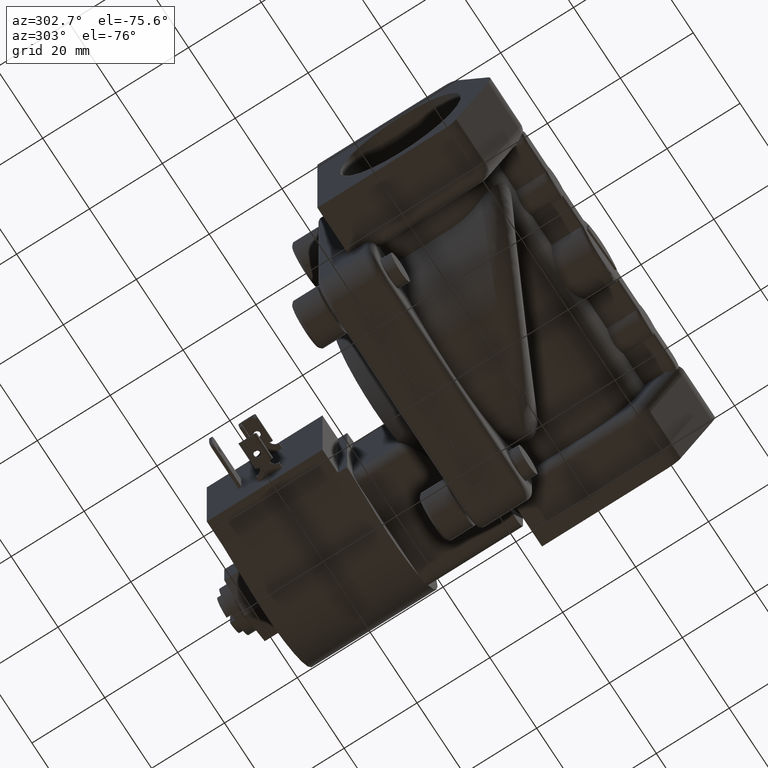
[diagram: clean part render]
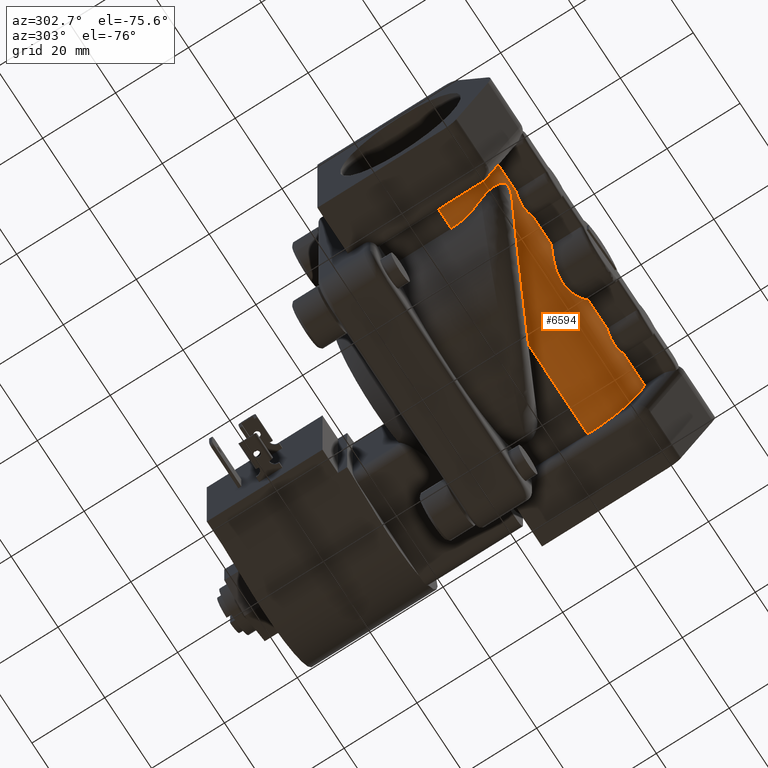
[diagram: same view with one face highlighted and labeled with its STEP entity id]
A machine part, auxiliary view. The second image highlights one B-rep face of the part: STEP entity #6594.
In plain terms, the highlighted cylindrical surface (partial cylindrical patch) has radius 16 mm, axis along (-1, 0, 0).
Its self-contained STEP definition (entity closure, byte-faithful):
#104 = CARTESIAN_POINT ( 'NONE',  ( -0.8403453437241460433, -38.35544171172597316, -8.500000000000003553 ) ) ;
#205 = VERTEX_POINT ( 'NONE', #2308 ) ;
#381 = ORIENTED_EDGE ( 'NONE', *, *, #9048, .T. ) ;
#397 = ORIENTED_EDGE ( 'NONE', *, *, #1745, .T. ) ;
#423 = CARTESIAN_POINT ( 'NONE',  ( 19.16358659245111795, -39.99868415357067875, -4.999999999999968026 ) ) ;
#482 = DIRECTION ( 'NONE',  ( 1.000000000000000000, 0.000000000000000000, 0.000000000000000000 ) ) ;
#577 = CARTESIAN_POINT ( 'NONE',  ( 4.986813992636885295, -39.24014945316515224, -6.895062666037823362 ) ) ;
#604 = CARTESIAN_POINT ( 'NONE',  ( -15.92928578572859166, -40.41249499599599915, -3.500000000000000000 ) ) ;
#649 = LINE ( 'NONE', #5150, #3531 ) ;
#686 = VERTEX_POINT ( 'NONE', #2572 ) ;
#729 = CARTESIAN_POINT ( 'NONE',  ( -23.07071421427144031, -40.41249499599599915, -3.499999999999993783 ) ) ;
#732 = CARTESIAN_POINT ( 'NONE',  ( -5.955682096655776192, -31.00339502211966547, -16.00000000000001421 ) ) ;
#741 = CARTESIAN_POINT ( 'NONE',  ( -27.66872556748253231, -38.50721297193354076, -8.257946528912583517 ) ) ;
#809 = CARTESIAN_POINT ( 'NONE',  ( -27.95531961690822342, -37.86831160484165082, -9.236110193540717717 ) ) ;
#866 = CARTESIAN_POINT ( 'NONE',  ( 19.83658702140046515, -39.99868415357067164, -4.999999999999968914 ) ) ;
#889 = CARTESIAN_POINT ( 'NONE',  ( -26.48428576813991953, -39.59581516749895513, -6.093072609152076602 ) ) ;
#958 = CARTESIAN_POINT ( 'NONE',  ( -24.73002772541055805, -39.79496974372631257, -5.581633609649959915 ) ) ;
#1206 = ORIENTED_EDGE ( 'NONE', *, *, #3876, .T. ) ;
#1271 = CARTESIAN_POINT ( 'NONE',  ( 31.51793470804021524, -40.44363891607277850, -3.358554353973534301 ) ) ;
#1596 = CARTESIAN_POINT ( 'NONE',  ( 3.223061989991411913, -38.72877271020131218, -7.875778920012262319 ) ) ;
#1621 = CARTESIAN_POINT ( 'NONE',  ( -19.50000000000000000, -39.99868415357066453, -4.999999999999997335 ) ) ;
#1661 = CARTESIAN_POINT ( 'NONE',  ( -26.25952208247514719, -25.62537298559110610, -16.00000000000000000 ) ) ;
#1676 = CARTESIAN_POINT ( 'NONE',  ( -27.78512571953224963, -33.88027422298339530, -13.17377962914341971 ) ) ;
#1685 = CARTESIAN_POINT ( 'NONE',  ( -16.41376753407733702, -40.30657029765465182, -3.947511747779276714 ) ) ;
#1725 = CARTESIAN_POINT ( 'NONE',  ( 19.50000000000000000, -39.99868415357067875, -4.999999999999969802 ) ) ;
#1731 = CARTESIAN_POINT ( 'NONE',  ( -22.58215512666186697, -40.30572903378216409, -3.950847613816174331 ) ) ;
#1745 = EDGE_CURVE ( 'NONE', #6978, #12059, #5379, .T. ) ;
#1788 = EDGE_CURVE ( 'NONE', #10759, #12662, #2075, .T. ) ;
#1812 = CARTESIAN_POINT ( 'NONE',  ( -26.25952208247515074, -24.80000000000000426, -16.00000000000000000 ) ) ;
#1817 = CARTESIAN_POINT ( 'NONE',  ( 32.00000000000000000, -24.80000000000000071, 0.000000000000000000 ) ) ;
#1849 = DIRECTION ( 'NONE',  ( 0.000000000000000000, 0.000000000000000000, 1.000000000000000000 ) ) ;
#1872 = CARTESIAN_POINT ( 'NONE',  ( 32.00000000000000000, -40.41249499599599915, -3.500000000000000000 ) ) ;
#1882 = CARTESIAN_POINT ( 'NONE',  ( -26.44618420057009800, -28.03599927433140593, -15.69020290811575968 ) ) ;
#1898 = CARTESIAN_POINT ( 'NONE',  ( -28.19321137932277566, -36.14662785717491289, -11.28466466030806181 ) ) ;
#2075 = B_SPLINE_CURVE_WITH_KNOTS ( 'NONE', 3,
 ( #1812, #1661, #9591, #1882, #6099, #5004, #3914, #6313, #12938, #2827 ),
 .UNSPECIFIED., .F., .F.,
 ( 4, 2, 2, 2, 4 ),
 ( 3.469446951953614189E-18, 0.002436493207322351206, 0.004872986414644698942, 0.007309479621967046245, 0.009745972829289394415 ),
 .UNSPECIFIED. ) ;
#2104 = VERTEX_POINT ( 'NONE', #8966 ) ;
#2111 = CARTESIAN_POINT ( 'NONE',  ( -27.37259411510047613, -38.92680715169058914, -7.517249583606690599 ) ) ;
#2113 = VERTEX_POINT ( 'NONE', #11826 ) ;
#2277 = CARTESIAN_POINT ( 'NONE',  ( 23.07071421427141900, -40.41249499599599915, -3.500000000000000000 ) ) ;
#2308 = CARTESIAN_POINT ( 'NONE',  ( -23.07071421427144031, -40.41249499599599915, -3.499999999999993783 ) ) ;
#2370 = CARTESIAN_POINT ( 'NONE',  ( 30.76068691160205404, -40.41249499599598494, -3.499999999999968470 ) ) ;
#2392 = VERTEX_POINT ( 'NONE', #9471 ) ;
#2497 = CARTESIAN_POINT ( 'NONE',  ( 30.50000000000000000, -40.41249499599599915, -3.499999999999984013 ) ) ;
#2524 = CARTESIAN_POINT ( 'NONE',  ( 18.18440410033602816, -40.05208073957336978, -4.835161286495949895 ) ) ;
#2572 = CARTESIAN_POINT ( 'NONE',  ( 23.07071421427141900, -40.41249499599599915, -3.500000000000000000 ) ) ;
#2652 = ORIENTED_EDGE ( 'NONE', *, *, #10946, .T. ) ;
#2743 = CARTESIAN_POINT ( 'NONE',  ( 19.50000000000000000, -39.99868415357067875, -4.999999999999969802 ) ) ;
#2762 = CARTESIAN_POINT ( 'NONE',  ( 5.304114228417612154, -39.35357518259444021, -6.654024487869540927 ) ) ;
#2827 = CARTESIAN_POINT ( 'NONE',  ( -27.78512571953224963, -33.88027422298339530, -13.17377962914341971 ) ) ;
#2834 = CARTESIAN_POINT ( 'NONE',  ( -22.52856129352373671, -39.08267363052814858, -7.211465451865020526 ) ) ;
#2851 = CARTESIAN_POINT ( 'NONE',  ( -17.25191421120373647, -40.16337344174943524, -4.469178746794012724 ) ) ;
#2913 = CARTESIAN_POINT ( 'NONE',  ( -28.19407572747587309, -36.35814777800479902, -11.06794576790459494 ) ) ;
#2931 = LINE ( 'NONE', #10499, #5694 ) ;
#2937 = CIRCLE ( 'NONE', #7587, 16.00000000000000000 ) ;
#2966 = CARTESIAN_POINT ( 'NONE',  ( 20.17352133295516836, -40.01013463959206007, -4.965547500496102273 ) ) ;
#3236 = CARTESIAN_POINT ( 'NONE',  ( -6.947484645922634705, -40.03090621256037451, -4.913877476283303736 ) ) ;
#3351 = CARTESIAN_POINT ( 'NONE',  ( 22.58623246592265943, -40.30657029765467314, -3.947511747779249180 ) ) ;
#3392 = VERTEX_POINT ( 'NONE', #12325 ) ;
#3452 = CARTESIAN_POINT ( 'NONE',  ( -3.954951267374288371, -38.91617312687089481, -7.534688065268063006 ) ) ;
#3491 = EDGE_CURVE ( 'NONE', #13544, #686, #2931, .T. ) ;
#3499 = ORIENTED_EDGE ( 'NONE', *, *, #4777, .T. ) ;
#3531 = VECTOR ( 'NONE', #13012, 1000.000000000000000 ) ;
#3560 = CARTESIAN_POINT ( 'NONE',  ( -15.92928578572859166, -40.41249499599599915, -3.500000000000000000 ) ) ;
#3697 = EDGE_CURVE ( 'NONE', #5368, #10759, #14356, .T. ) ;
#3725 = CARTESIAN_POINT ( 'NONE',  ( -18.82647866704483519, -40.01013463959205296, -4.965547500496130695 ) ) ;
#3739 = CARTESIAN_POINT ( 'NONE',  ( 32.00000000000000000, -24.80000000000000071, -16.00000000000000000 ) ) ;
#3825 = CARTESIAN_POINT ( 'NONE',  ( -30.76066409400418777, -40.41249499599599204, -3.499999999999996447 ) ) ;
#3876 = EDGE_CURVE ( 'NONE', #12662, #5547, #10231, .T. ) ;
#3914 = CARTESIAN_POINT ( 'NONE',  ( -26.99961872608189495, -31.11595601334886751, -14.72204657475251821 ) ) ;
#3954 = LINE ( 'NONE', #3739, #13170 ) ;
#3981 = CARTESIAN_POINT ( 'NONE',  ( 20.82433831061204188, -40.05281733744711659, -4.832848125554335184 ) ) ;
#4018 = CYLINDRICAL_SURFACE ( 'NONE', #12425, 16.00000000000000000 ) ;
#4038 = CARTESIAN_POINT ( 'NONE',  ( -31.76541044103354494, -40.46195181536940311, -3.273553258412631006 ) ) ;
#4069 = CARTESIAN_POINT ( 'NONE',  ( -26.98902654343045526, -39.29316608067895800, -6.783284926702303430 ) ) ;
#4153 = CARTESIAN_POINT ( 'NONE',  ( -25.32466047125980424, -39.82977969022116582, -5.486927609069320866 ) ) ;
#4220 = CARTESIAN_POINT ( 'NONE',  ( -25.17095736602840717, -39.82901868817083368, -5.489011938075700314 ) ) ;
#4279 = ORIENTED_EDGE ( 'NONE', *, *, #5324, .T. ) ;
#4361 = CARTESIAN_POINT ( 'NONE',  ( -24.06707117492183912, -39.66945174676726538, -5.910454233410108671 ) ) ;
#4527 = CARTESIAN_POINT ( 'NONE',  ( -6.704637735783916419, -39.92106376958448521, -5.240046127269242682 ) ) ;
#4537 = CARTESIAN_POINT ( 'NONE',  ( 30.50000000000000000, -40.41249499599599915, -3.499999999999984013 ) ) ;
#4750 = EDGE_CURVE ( 'NONE', #686, #13998, #13910, .T. ) ;
#4777 = EDGE_CURVE ( 'NONE', #205, #2113, #649, .T. ) ;
#4847 = CARTESIAN_POINT ( 'NONE',  ( 16.41784487333816855, -40.30572903378217831, -3.950847613816172554 ) ) ;
#4895 = CARTESIAN_POINT ( 'NONE',  ( -17.86050123719518723, -40.08385867024126270, -4.735162153978585309 ) ) ;
#4983 = ORIENTED_EDGE ( 'NONE', *, *, #9042, .T. ) ;
#5004 = CARTESIAN_POINT ( 'NONE',  ( -26.83336234695810418, -30.37202394734940469, -15.02037997532216984 ) ) ;
#5035 = CARTESIAN_POINT ( 'NONE',  ( -18.17566168938795457, -40.05281733744710237, -4.832848125554362717 ) ) ;
#5092 = CARTESIAN_POINT ( 'NONE',  ( -22.83835061912431286, -40.35935140861396775, -3.737058283448859264 ) ) ;
#5150 = CARTESIAN_POINT ( 'NONE',  ( 32.00000000000000000, -40.41249499599599915, -3.500000000000000000 ) ) ;
#5184 = EDGE_CURVE ( 'NONE', #13998, #6205, #10429, .T. ) ;
#5236 = VECTOR ( 'NONE', #6305, 1000.000000000000000 ) ;
#5242 = CARTESIAN_POINT ( 'NONE',  ( -22.73266733564337017, -39.18217430664460466, -7.014399308751973372 ) ) ;
#5324 = EDGE_CURVE ( 'NONE', #12059, #5980, #10243, .T. ) ;
#5336 = ORIENTED_EDGE ( 'NONE', *, *, #9463, .F. ) ;
#5356 = CARTESIAN_POINT ( 'NONE',  ( -4.306404788017212049, -39.01946387363398827, -7.339434318919637157 ) ) ;
#5368 = VERTEX_POINT ( 'NONE', #14297 ) ;
#5379 = B_SPLINE_CURVE_WITH_KNOTS ( 'NONE', 3,
 ( #7421, #10532, #6168, #12724, #11553, #2762, #577, #13742, #8433, #1596, #12798, #10466, #9451, #6247, #13888, #11627 ),
 .UNSPECIFIED., .F., .F.,
 ( 4, 2, 2, 2, 2, 2, 2, 4 ),
 ( -0.009943655216159719493, -0.007457741412119791788, -0.006214784510099827936, -0.004971827608079862348, -0.003728870706059896761, -0.002485913804039932042, -0.001242956902019965587, 0.000000000000000000 ),
 .UNSPECIFIED. ) ;
#5426 = CARTESIAN_POINT ( 'NONE',  ( -6.182487219188662841, -39.69689734713824691, -5.846973778680383482 ) ) ;
#5457 = CARTESIAN_POINT ( 'NONE',  ( -27.75167297458653692, -38.35484041142672140, -8.505978340039114016 ) ) ;
#5547 = VERTEX_POINT ( 'NONE', #9126 ) ;
#5567 = CARTESIAN_POINT ( 'NONE',  ( -7.382858002884320037, -40.23436274814198299, -4.231683171800796117 ) ) ;
#5615 = CARTESIAN_POINT ( 'NONE',  ( 21.59723292573340458, -40.14195166396530823, -4.541920657568431885 ) ) ;
#5637 = DIRECTION ( 'NONE',  ( -1.000000000000000000, 0.000000000000000000, 0.000000000000000000 ) ) ;
#5671 = CARTESIAN_POINT ( 'NONE',  ( -27.78512571953224963, -33.88027422298339530, -13.17377962914341971 ) ) ;
#5694 = VECTOR ( 'NONE', #7299, 1000.000000000000000 ) ;
#5855 = CARTESIAN_POINT ( 'NONE',  ( 6.769230769230879297, -24.80000000000000071, -16.00000000000000000 ) ) ;
#5910 = CARTESIAN_POINT ( 'NONE',  ( -19.16341297859953130, -39.99868415357066453, -4.999999999999997335 ) ) ;
#5980 = VERTEX_POINT ( 'NONE', #7553 ) ;
#6018 = CARTESIAN_POINT ( 'NONE',  ( 17.25248146028650709, -40.16098502001522519, -4.478634039444554737 ) ) ;
#6099 = CARTESIAN_POINT ( 'NONE',  ( -26.55494494612230838, -28.82283694900414517, -15.50729016800232962 ) ) ;
#6124 = CARTESIAN_POINT ( 'NONE',  ( -17.40276707426659186, -40.14195166396530823, -4.541920657568458530 ) ) ;
#6155 = CARTESIAN_POINT ( 'NONE',  ( -31.02121436511131947, -40.41918543980892764, -3.470506279730243726 ) ) ;
#6168 = CARTESIAN_POINT ( 'NONE',  ( 6.973784476822448397, -40.03683706665248110, -4.925440397583637164 ) ) ;
#6172 = CARTESIAN_POINT ( 'NONE',  ( -22.03622956013634848, -40.20650554233426988, -4.321621999978201067 ) ) ;
#6205 = VERTEX_POINT ( 'NONE', #10730 ) ;
#6247 = CARTESIAN_POINT ( 'NONE',  ( 0.8429718443959276497, -38.37545639789379948, -8.468304380706630496 ) ) ;
#6252 = CARTESIAN_POINT ( 'NONE',  ( -19.50000000000000000, -39.99868415357066453, -4.999999999999997335 ) ) ;
#6305 = DIRECTION ( 'NONE',  ( -1.000000000000000000, 0.000000000000000000, 0.000000000000000000 ) ) ;
#6313 = CARTESIAN_POINT ( 'NONE',  ( -27.36834299231645318, -32.54196920388101688, -14.02468782390174162 ) ) ;
#6320 = CARTESIAN_POINT ( 'NONE',  ( -32.00000000000000000, -24.80000000000000071, 0.000000000000000000 ) ) ;
#6394 = B_SPLINE_CURVE_WITH_KNOTS ( 'NONE', 3,
 ( #604, #11498, #1685, #12821, #10556, #2851, #6124, #4895, #5035, #3725, #5910, #1621 ),
 .UNSPECIFIED., .F., .F.,
 ( 4, 2, 2, 2, 2, 4 ),
 ( -0.003979608854300072454, -0.002984706640725061713, -0.002487255533937550271, -0.001989804427150039263, -0.0009949022135750198483, 0.000000000000000000 ),
 .UNSPECIFIED. ) ;
#6403 = CARTESIAN_POINT ( 'NONE',  ( -25.76573574151237978, -39.79360694823031963, -5.585433078940457818 ) ) ;
#6510 = CARTESIAN_POINT ( 'NONE',  ( -5.302833731626583891, -39.35312068889870574, -6.654982275105045808 ) ) ;
#6578 = CARTESIAN_POINT ( 'NONE',  ( -7.576746384381801036, -40.32853821202007794, -3.874507105629729331 ) ) ;
#6594 = ADVANCED_FACE ( 'NONE', ( #13990 ), #4018, .T. ) ;
#6716 = CARTESIAN_POINT ( 'NONE',  ( 22.03900331533358070, -40.20863042687893341, -4.310558032239898196 ) ) ;
#6732 = CARTESIAN_POINT ( 'NONE',  ( 0.000000000000000000, -38.35544171172595895, -8.500000000000000000 ) ) ;
#6804 = CARTESIAN_POINT ( 'NONE',  ( 31.01632116469541955, -40.41902157664640072, -3.471237657279469424 ) ) ;
#6813 = ORIENTED_EDGE ( 'NONE', *, *, #4750, .T. ) ;
#6929 = DIRECTION ( 'NONE',  ( 1.000000000000000000, 0.000000000000000000, 0.000000000000000000 ) ) ;
#6954 = LINE ( 'NONE', #11307, #13402 ) ;
#6978 = VERTEX_POINT ( 'NONE', #13522 ) ;
#7079 = ORIENTED_EDGE ( 'NONE', *, *, #11421, .T. ) ;
#7099 = CARTESIAN_POINT ( 'NONE',  ( 17.86231171653743033, -40.08366919664799610, -4.735765992090056997 ) ) ;
#7209 = DIRECTION ( 'NONE',  ( -1.000000000000000000, 0.000000000000000000, 0.000000000000000000 ) ) ;
#7278 = CARTESIAN_POINT ( 'NONE',  ( -16.79323194910304551, -36.28670057518774428, -12.74903210822068189 ) ) ;
#7281 = EDGE_LOOP ( 'NONE', ( #13322, #381, #7434, #10405, #6813, #10427, #10148, #397, #4279, #2652, #7079, #4983, #3499, #5336, #14116, #7817, #13257, #1206, #10858 ) ) ;
#7299 = DIRECTION ( 'NONE',  ( -1.000000000000000000, 0.000000000000000000, 0.000000000000000000 ) ) ;
#7344 = CARTESIAN_POINT ( 'NONE',  ( -20.16668459521059731, -40.00985347282293247, -4.966397979235150473 ) ) ;
#7361 = CARTESIAN_POINT ( 'NONE',  ( -26.15169926540938405, -39.70880332136436408, -5.808442441625181196 ) ) ;
#7421 = CARTESIAN_POINT ( 'NONE',  ( 7.745966692414837595, -40.41249499599599915, -3.500000000000000000 ) ) ;
#7425 = DIRECTION ( 'NONE',  ( 0.000000000000000000, 0.000000000000000000, 1.000000000000000000 ) ) ;
#7434 = ORIENTED_EDGE ( 'NONE', *, *, #14119, .F. ) ;
#7438 = CARTESIAN_POINT ( 'NONE',  ( -23.59516788196841475, -39.52915484050858907, -6.251884690155287139 ) ) ;
#7456 = CARTESIAN_POINT ( 'NONE',  ( 32.00000000000000000, -24.80000000000000071, 0.000000000000000000 ) ) ;
#7500 = VERTEX_POINT ( 'NONE', #5855 ) ;
#7553 = CARTESIAN_POINT ( 'NONE',  ( -7.745966692414839372, -40.41249499599599915, -3.499999999999998668 ) ) ;
#7572 = CARTESIAN_POINT ( 'NONE',  ( -27.12746514499632511, -39.17694654246569286, -7.027028512705443930 ) ) ;
#7587 = AXIS2_PLACEMENT_3D ( 'NONE', #6320, #9383, #10689 ) ;
#7653 = CARTESIAN_POINT ( 'NONE',  ( -27.47924959453438731, -38.79285744056086571, -7.764103874914515480 ) ) ;
#7817 = ORIENTED_EDGE ( 'NONE', *, *, #3697, .T. ) ;
#8056 = CARTESIAN_POINT ( 'NONE',  ( 18.83331540478941690, -40.00985347282293958, -4.966397979235123827 ) ) ;
#8200 = CARTESIAN_POINT ( 'NONE',  ( -32.00000000000000000, -40.48438714135811978, -3.162277660168374638 ) ) ;
#8287 = B_SPLINE_CURVE_WITH_KNOTS ( 'NONE', 3,
 ( #6252, #8297, #7344, #8511, #12729, #9595, #6172, #1731, #5092, #729 ),
 .UNSPECIFIED., .F., .F.,
 ( 4, 2, 2, 2, 4 ),
 ( 1.084202172485504434E-19, 0.0009943890363154294330, 0.001988778072630858432, 0.002983167108946287865, 0.003977556145261716865 ),
 .UNSPECIFIED. ) ;
#8297 = CARTESIAN_POINT ( 'NONE',  ( -19.83641340754888205, -39.99868415357065743, -4.999999999999997335 ) ) ;
#8433 = CARTESIAN_POINT ( 'NONE',  ( 3.961623171457542725, -38.91796864898595487, -7.531371988927887173 ) ) ;
#8450 = CARTESIAN_POINT ( 'NONE',  ( -27.94210906726413768, -34.36072766597486350, -12.84262362049160799 ) ) ;
#8489 = CARTESIAN_POINT ( 'NONE',  ( -31.52266792926140226, -40.44394896061353251, -3.357116107391228788 ) ) ;
#8511 = CARTESIAN_POINT ( 'NONE',  ( -20.81559589966398960, -40.05208073957336978, -4.835161286495973876 ) ) ;
#8528 = CARTESIAN_POINT ( 'NONE',  ( -26.66845986792477774, -39.50164600160204742, -6.318735813637716525 ) ) ;
#8734 = CARTESIAN_POINT ( 'NONE',  ( -28.16538232441299172, -36.96899041343157677, -10.40559881197206415 ) ) ;
#8786 = CARTESIAN_POINT ( 'NONE',  ( 32.00000000000000000, -40.48438714135812688, -3.162277660168348437 ) ) ;
#8966 = CARTESIAN_POINT ( 'NONE',  ( 32.00000000000000000, -40.48438714135812688, -3.162277660168348437 ) ) ;
#8967 = CARTESIAN_POINT ( 'NONE',  ( 22.83824045836919581, -40.35932621388540298, -3.737170669898590702 ) ) ;
#8984 = CARTESIAN_POINT ( 'NONE',  ( -7.745966692414839372, -40.41249499599599915, -3.499999999999998668 ) ) ;
#9042 = EDGE_CURVE ( 'NONE', #3392, #205, #8287, .T. ) ;
#9048 = EDGE_CURVE ( 'NONE', #2392, #2104, #11984, .T. ) ;
#9126 = CARTESIAN_POINT ( 'NONE',  ( -22.52856129352373671, -39.08267363052814858, -7.211465451865020526 ) ) ;
#9289 = CARTESIAN_POINT ( 'NONE',  ( 16.16164938087572267, -40.35935140861396775, -3.737058283448861484 ) ) ;
#9383 = DIRECTION ( 'NONE',  ( 1.000000000000000000, 0.000000000000000000, 0.000000000000000000 ) ) ;
#9451 = CARTESIAN_POINT ( 'NONE',  ( 1.665211486864240475, -38.45120303038001452, -8.345648645776723384 ) ) ;
#9463 = EDGE_CURVE ( 'NONE', #12719, #2113, #14221, .T. ) ;
#9471 = CARTESIAN_POINT ( 'NONE',  ( 32.00000000000000000, -24.80000000000000071, -16.00000000000000000 ) ) ;
#9591 = CARTESIAN_POINT ( 'NONE',  ( -26.29847155866276864, -26.43726566408275147, -15.93654666941785436 ) ) ;
#9595 = CARTESIAN_POINT ( 'NONE',  ( -21.74751853971352844, -40.16098502001521808, -4.478634039444566284 ) ) ;
#9682 = CARTESIAN_POINT ( 'NONE',  ( -25.62072630030649023, -39.81218840007529280, -5.534875930352541218 ) ) ;
#9708 = EDGE_CURVE ( 'NONE', #6205, #6978, #13283, .T. ) ;
#9927 = CARTESIAN_POINT ( 'NONE',  ( -4.981496579229699684, -39.23825954968955898, -6.899065889750270131 ) ) ;
#10048 = CARTESIAN_POINT ( 'NONE',  ( 21.13949876280481277, -40.08385867024125560, -4.735162153978556887 ) ) ;
#10148 = ORIENTED_EDGE ( 'NONE', *, *, #9708, .T. ) ;
#10195 = VERTEX_POINT ( 'NONE', #3560 ) ;
#10231 = B_SPLINE_CURVE_WITH_KNOTS ( 'NONE', 3,
 ( #1676, #8450, #12880, #14199, #11789, #1898, #2913, #8734, #10698, #809, #14261, #5457, #741, #7653, #2111, #7572, #4069, #8528, #889, #7361, #14128, #6403, #9682, #4153, #4220, #13172, #958, #13032, #4361, #7438, #12007, #13099, #5242, #12961 ),
 .UNSPECIFIED., .F., .F.,
 ( 4, 2, 2, 2, 2, 2, 2, 2, 2, 2, 2, 2, 2, 2, 2, 2, 4 ),
 ( 0.000000000000000000, 0.001786910752550725573, 0.002680366128826090853, 0.003573821505101455916, 0.005360732257652176501, 0.006254187633927537661, 0.007147643010202898821, 0.008041098386478259114, 0.008934553762753620273, 0.009828009139028981433, 0.01027473682716666635, 0.01072146451530435127, 0.01116819220344203618, 0.01161491989157971937, 0.01250837526785509093, 0.01340183064413046077, 0.01429528602040583060 ),
 .UNSPECIFIED. ) ;
#10243 = B_SPLINE_CURVE_WITH_KNOTS ( 'NONE', 3,
 ( #6732, #104, #13429, #11008, #12044, #3452, #5356, #9927, #6510, #11086, #5426, #4527, #3236, #5567, #6578, #8984 ),
 .UNSPECIFIED., .F., .F.,
 ( 4, 2, 2, 2, 2, 2, 2, 4 ),
 ( 1.084202172485504434E-19, 0.002480419038383724351, 0.003720628557575588261, 0.004960838076767450436, 0.006201047595959313478, 0.007441257115151174786, 0.008681466634343036962, 0.009921676153534899137 ),
 .UNSPECIFIED. ) ;
#10317 = EDGE_CURVE ( 'NONE', #5547, #7500, #12646, .T. ) ;
#10367 = EDGE_CURVE ( 'NONE', #12719, #5368, #2937, .T. ) ;
#10405 = ORIENTED_EDGE ( 'NONE', *, *, #3491, .T. ) ;
#10427 = ORIENTED_EDGE ( 'NONE', *, *, #5184, .T. ) ;
#10429 = B_SPLINE_CURVE_WITH_KNOTS ( 'NONE', 3,
 ( #2743, #423, #8056, #2524, #7099, #6018, #11451, #4847, #9289, #13725 ),
 .UNSPECIFIED., .F., .F.,
 ( 4, 2, 2, 2, 4 ),
 ( -2.168404344971008868E-19, 0.0009943890363154155553, 0.001988778072630831111, 0.002983167108946247099, 0.003977556145261663088 ),
 .UNSPECIFIED. ) ;
#10466 = CARTESIAN_POINT ( 'NONE',  ( 2.064974680994366096, -38.50646757570989820, -8.255383668535975161 ) ) ;
#10499 = CARTESIAN_POINT ( 'NONE',  ( 32.00000000000000000, -40.41249499599599915, -3.500000000000000000 ) ) ;
#10532 = CARTESIAN_POINT ( 'NONE',  ( 7.406804680368309413, -40.24422351540826526, -4.250610756755654585 ) ) ;
#10556 = CARTESIAN_POINT ( 'NONE',  ( -16.96099668466642285, -40.20863042687893341, -4.310558032239927506 ) ) ;
#10689 = DIRECTION ( 'NONE',  ( 0.000000000000000000, 8.673617379884035472E-16, 1.000000000000000000 ) ) ;
#10698 = CARTESIAN_POINT ( 'NONE',  ( -28.10564493959143917, -37.34591300919198886, -9.947163696236753339 ) ) ;
#10730 = CARTESIAN_POINT ( 'NONE',  ( 15.92928578572860232, -40.41249499599599915, -3.499999999999998668 ) ) ;
#10759 = VERTEX_POINT ( 'NONE', #13798 ) ;
#10858 = ORIENTED_EDGE ( 'NONE', *, *, #10317, .T. ) ;
#10946 = EDGE_CURVE ( 'NONE', #5980, #10195, #6954, .T. ) ;
#11008 = CARTESIAN_POINT ( 'NONE',  ( -2.839763138507485074, -38.64424230959305362, -8.022216124814503857 ) ) ;
#11073 = EDGE_CURVE ( 'NONE', #7500, #2392, #3954, .T. ) ;
#11086 = CARTESIAN_POINT ( 'NONE',  ( -5.902266540818605023, -39.58208464727631792, -6.129607193643996865 ) ) ;
#11144 = CARTESIAN_POINT ( 'NONE',  ( 21.74808578879627419, -40.16337344174944946, -4.469178746793981638 ) ) ;
#11195 = CARTESIAN_POINT ( 'NONE',  ( -32.00000000000000000, -40.48438714135811978, -3.162277660168374638 ) ) ;
#11229 = CARTESIAN_POINT ( 'NONE',  ( 31.76537715455410193, -40.46194863196678426, -3.273569047576155189 ) ) ;
#11304 = CARTESIAN_POINT ( 'NONE',  ( 0.000000000000000000, -38.35544171172595895, -8.500000000000000000 ) ) ;
#11307 = CARTESIAN_POINT ( 'NONE',  ( 32.00000000000000000, -40.41249499599599915, -3.500000000000000000 ) ) ;
#11421 = EDGE_CURVE ( 'NONE', #10195, #3392, #6394, .T. ) ;
#11451 = CARTESIAN_POINT ( 'NONE',  ( 16.96377043986368349, -40.20650554233427698, -4.321621999978190409 ) ) ;
#11498 = CARTESIAN_POINT ( 'NONE',  ( -16.16175954163080775, -40.35932621388538166, -3.737170669898625786 ) ) ;
#11553 = CARTESIAN_POINT ( 'NONE',  ( 5.904956870714644701, -39.58314711055552948, -6.127083644628127601 ) ) ;
#11627 = CARTESIAN_POINT ( 'NONE',  ( 0.000000000000000000, -38.35544171172595895, -8.500000000000000000 ) ) ;
#11635 = CARTESIAN_POINT ( 'NONE',  ( 19.50000000000000000, -39.99868415357067875, -4.999999999999969802 ) ) ;
#11700 = CARTESIAN_POINT ( 'NONE',  ( 6.769230769230879297, -24.80000000000000071, -16.00000000000000000 ) ) ;
#11789 = CARTESIAN_POINT ( 'NONE',  ( -28.17028993569063999, -35.71655284490427817, -11.70121763788861280 ) ) ;
#11826 = CARTESIAN_POINT ( 'NONE',  ( -30.50000000000000000, -40.41249499599599915, -3.499999999999997780 ) ) ;
#11907 = B_SPLINE_CURVE_WITH_KNOTS ( 'NONE', 3,
 ( #4537, #2370, #6804, #1271, #11229, #8786 ),
 .UNSPECIFIED., .F., .F.,
 ( 4, 2, 4 ),
 ( 3.496446946337351263E-18, 0.0007708303217055109896, 0.001541660643411018510 ),
 .UNSPECIFIED. ) ;
#11984 = CIRCLE ( 'NONE', #12921, 16.00000000000000000 ) ;
#12007 = CARTESIAN_POINT ( 'NONE',  ( -23.37156959874201689, -39.44898609099745812, -6.438240809845603430 ) ) ;
#12044 = CARTESIAN_POINT ( 'NONE',  ( -3.222618034427910061, -38.72874621838973042, -7.875779121609395972 ) ) ;
#12059 = VERTEX_POINT ( 'NONE', #11304 ) ;
#12238 = CARTESIAN_POINT ( 'NONE',  ( 22.17943699233845933, -40.23248539563572734, -4.224634583278249700 ) ) ;
#12325 = CARTESIAN_POINT ( 'NONE',  ( -19.50000000000000000, -39.99868415357066453, -4.999999999999997335 ) ) ;
#12425 = AXIS2_PLACEMENT_3D ( 'NONE', #7456, #12899, #1849 ) ;
#12438 = VECTOR ( 'NONE', #6929, 1000.000000000000000 ) ;
#12646 =( BOUNDED_CURVE ( )  B_SPLINE_CURVE ( 3, ( #2834, #7278, #732, #11700 ),
 .UNSPECIFIED., .F., .F. ) 
 B_SPLINE_CURVE_WITH_KNOTS ( ( 4, 4 ),
 ( 0.4675679290044009728, 1.570796326794899889 ),
 .UNSPECIFIED. ) 
 CURVE ( )  GEOMETRIC_REPRESENTATION_ITEM ( )  RATIONAL_B_SPLINE_CURVE ( ( 1.000000000000000000, 0.9011197937289829873, 0.9011197937289829873, 1.000000000000000000 ) ) 
 REPRESENTATION_ITEM ( '' )  );
#12662 = VERTEX_POINT ( 'NONE', #5671 ) ;
#12719 = VERTEX_POINT ( 'NONE', #11195 ) ;
#12724 = CARTESIAN_POINT ( 'NONE',  ( 6.190249339659659178, -39.70011981004827817, -5.838811640451577745 ) ) ;
#12729 = CARTESIAN_POINT ( 'NONE',  ( -21.13768828346259454, -40.08366919664798900, -4.735765992090076537 ) ) ;
#12798 = CARTESIAN_POINT ( 'NONE',  ( 2.843902365612067218, -38.64524877479538389, -8.020455054592872557 ) ) ;
#12821 = CARTESIAN_POINT ( 'NONE',  ( -16.82056300766154422, -40.23248539563571313, -4.224634583278279010 ) ) ;
#12880 = CARTESIAN_POINT ( 'NONE',  ( -28.05015607247401377, -34.82555191261480587, -12.48354611939568493 ) ) ;
#12899 = DIRECTION ( 'NONE',  ( -1.000000000000000000, 0.000000000000000000, 0.000000000000000000 ) ) ;
#12921 = AXIS2_PLACEMENT_3D ( 'NONE', #1817, #7209, #7425 ) ;
#12938 = CARTESIAN_POINT ( 'NONE',  ( -27.57109853383242282, -33.22532602991162065, -13.62522044155789303 ) ) ;
#12961 = CARTESIAN_POINT ( 'NONE',  ( -22.52856129352373671, -39.08267363052814858, -7.211465451865020526 ) ) ;
#12982 = CARTESIAN_POINT ( 'NONE',  ( 32.00000000000000000, -24.80000000000000071, -16.00000000000000000 ) ) ;
#13012 = DIRECTION ( 'NONE',  ( -1.000000000000000000, 0.000000000000000000, 0.000000000000000000 ) ) ;
#13032 = CARTESIAN_POINT ( 'NONE',  ( -24.31393506850378472, -39.73021158498811900, -5.753589097081547976 ) ) ;
#13099 = CARTESIAN_POINT ( 'NONE',  ( -22.94067992544490764, -39.27570089668743947, -6.818931131008787005 ) ) ;
#13170 = VECTOR ( 'NONE', #482, 1000.000000000000000 ) ;
#13172 = CARTESIAN_POINT ( 'NONE',  ( -24.87354155971940273, -39.81138471142888591, -5.537055519967660544 ) ) ;
#13257 = ORIENTED_EDGE ( 'NONE', *, *, #1788, .T. ) ;
#13283 = LINE ( 'NONE', #1872, #5236 ) ;
#13322 = ORIENTED_EDGE ( 'NONE', *, *, #11073, .T. ) ;
#13402 = VECTOR ( 'NONE', #5637, 1000.000000000000000 ) ;
#13429 = CARTESIAN_POINT ( 'NONE',  ( -1.654374141243358798, -38.43385915927023433, -8.378178271260654952 ) ) ;
#13522 = CARTESIAN_POINT ( 'NONE',  ( 7.745966692414837595, -40.41249499599599915, -3.500000000000000000 ) ) ;
#13544 = VERTEX_POINT ( 'NONE', #2497 ) ;
#13725 = CARTESIAN_POINT ( 'NONE',  ( 15.92928578572860232, -40.41249499599599915, -3.499999999999998668 ) ) ;
#13742 = CARTESIAN_POINT ( 'NONE',  ( 4.316826089588263748, -39.02267871817179667, -7.333158628994582706 ) ) ;
#13796 = CARTESIAN_POINT ( 'NONE',  ( -30.50000000000000000, -40.41249499599599915, -3.499999999999997780 ) ) ;
#13798 = CARTESIAN_POINT ( 'NONE',  ( -26.25952208247515074, -24.80000000000000426, -16.00000000000000000 ) ) ;
#13888 = CARTESIAN_POINT ( 'NONE',  ( 0.4211034623177569713, -38.35544171172596606, -8.500000000000001776 ) ) ;
#13910 = B_SPLINE_CURVE_WITH_KNOTS ( 'NONE', 3,
 ( #2277, #8967, #3351, #12238, #6716, #11144, #5615, #10048, #3981, #2966, #866, #1725 ),
 .UNSPECIFIED., .F., .F.,
 ( 4, 2, 2, 2, 2, 4 ),
 ( -0.003979608854300074189, -0.002984706640725066050, -0.002487255533937558945, -0.001989804427150052273, -0.0009949022135750259198, 0.000000000000000000 ),
 .UNSPECIFIED. ) ;
#13990 = FACE_OUTER_BOUND ( 'NONE', #7281, .T. ) ;
#13998 = VERTEX_POINT ( 'NONE', #11635 ) ;
#14116 = ORIENTED_EDGE ( 'NONE', *, *, #10367, .T. ) ;
#14119 = EDGE_CURVE ( 'NONE', #13544, #2104, #11907, .T. ) ;
#14128 = CARTESIAN_POINT ( 'NONE',  ( -26.02935491454818262, -39.74210007827020519, -5.721796680090974085 ) ) ;
#14199 = CARTESIAN_POINT ( 'NONE',  ( -28.14831776456636447, -35.49702186084907396, -11.90215850278511844 ) ) ;
#14221 = B_SPLINE_CURVE_WITH_KNOTS ( 'NONE', 3,
 ( #8200, #4038, #8489, #6155, #3825, #13796 ),
 .UNSPECIFIED., .F., .F.,
 ( 4, 2, 4 ),
 ( 0.000000000000000000, 0.0007708702381522485698, 0.001541740476304507331 ),
 .UNSPECIFIED. ) ;
#14261 = CARTESIAN_POINT ( 'NONE',  ( -27.89497671566502035, -38.03525291042824108, -8.995190186842226154 ) ) ;
#14297 = CARTESIAN_POINT ( 'NONE',  ( -32.00000000000000000, -24.80000000000000071, -16.00000000000000000 ) ) ;
#14356 = LINE ( 'NONE', #12982, #12438 ) ;